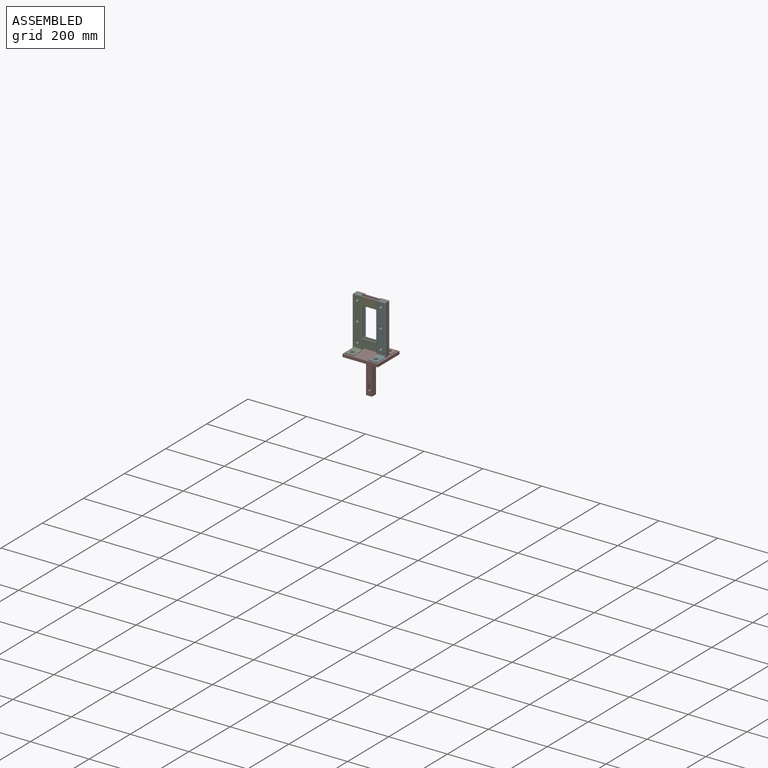
[diagram: assembled view]
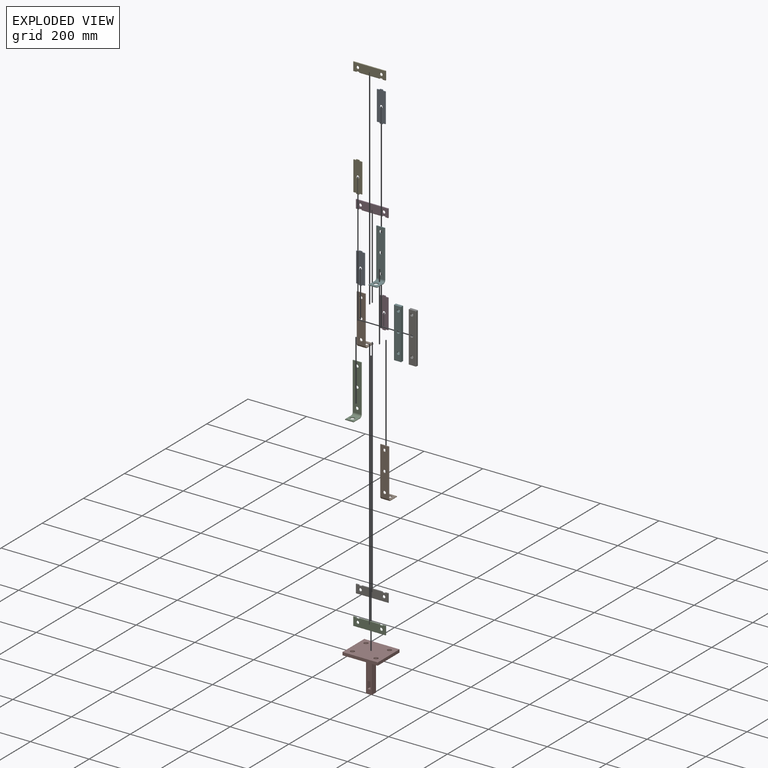
[diagram: exploded view]
GUIDED TOUR — MATED ASSEMBLY (Onshape document da275f5c8d93e357350612ad, AutoMate assembly da275f5c8d93e357350612ad_b882df6806a3eb5cf7b7b091_5af4481226fbedd95fbf42c7_default)

This assembly has 15 components, labeled P0..P14 below (a component is one placed occurrence of a part; the same part can appear more than once), held together by 14 mates. A mate is a constraint between two components; its type names the relative motion it leaves free:
  FASTENED — locks the two components together rigidly (no relative motion).
Axis/direction vectors are unit vectors and 'through' points are millimeter coordinates, both in the assembly's world frame.

MATES
  1. FASTENED "Fastened 4": P10 <-> P7, direction (0.000, 0.000, -1.000) through (-39.80, -33.55, 0.26) mm
  2. FASTENED "Fastened 9": P5 <-> P12, direction (0.000, -1.000, 0.000) through (-39.80, -5.55, 90.26) mm
  3. FASTENED "Fastened 10": P6 <-> P0, direction (0.000, 1.000, 0.000) through (40.20, -5.55, 90.26) mm
  4. FASTENED "Fastened 14": P5 <-> P8, direction (0.000, 1.000, 0.000) through (-39.80, 4.45, 90.26) mm
  5. FASTENED "Fastened 1": P1 <-> P7, direction (0.000, 0.000, -1.000) through (40.20, 32.45, 0.26) mm
  6. FASTENED "Fastened 6": P12 <-> P4, direction (0.000, 0.000, 1.000) through (-39.80, -7.05, 143.26) mm
  7. FASTENED "Fastened 2": P13 <-> P7, direction (0.000, 0.000, -1.000) through (40.20, -33.55, 0.26) mm
  8. FASTENED "Fastened 13": P14 <-> P8, direction (0.000, 0.000, 1.000) through (-39.80, 5.95, 37.26) mm
  9. FASTENED "Fastened 12": P3 <-> P11, direction (0.000, 0.000, 1.000) through (40.20, 5.95, 143.26) mm
  10. FASTENED "Fastened 3": P9 <-> P7, direction (0.000, 0.000, -1.000) through (-39.80, 32.45, 0.26) mm
  11. FASTENED "Fastened 11": P11 <-> P8, direction (0.000, 0.000, -1.000) through (-39.80, 5.95, 143.26) mm
  12. FASTENED "Fastened 8": P0 <-> P13, direction (0.000, -1.000, 0.000) through (40.20, -8.55, 90.26) mm
  13. FASTENED "Fastened 7": P2 <-> P0, direction (0.000, 0.000, 1.000) through (40.20, -7.05, 37.26) mm
  14. FASTENED "Fastened 5": P4 <-> P0, direction (0.000, 0.000, -1.000) through (40.20, -7.05, 143.26) mm

ASSEMBLY ORDER
  1. P9 — the base component [order verified]
  2. P10 [order verified]
  3. P14 [order verified]
  4. P1 [order verified]
  5. P13 [order verified]
  6. P2 [order verified]
  7. P7 [order verified]
  8. P3 [order verified]
  9. P11 [order verified]
  10. P8 [order verified]
  11. P12 [order verified]
  12. P0 [order verified]
  13. P5 [order verified]
  14. P6 [order verified]
  15. P4 [order verified]
Order-tag legend:
  [order verified] — this step's position reverses a verified removal order: the component was checked to insert without passing through the ones already placed.

Of the 15 components, 1 carries the full construction recipe — the FeatureScript program that regenerates the part's solid from scratch; the rest are supplied as boundary geometry only.
Because this assembly has more than 12 components, the tour below covers the 12 most significant ones individually (every recipe-attached component first, then the largest by part volume), in assembly order; the remaining 3 are summarized together in a grouped section at the end.
Each toured component is shown spotlighted twice — in the assembled view, then in the exploded view, where a leader line traces a displaced component back to its assembled socket (saturated green if recipe-attached, orange if geometry-only; every other component desaturated gray) — followed by its recipe or geometry summary and the mates that hold it.
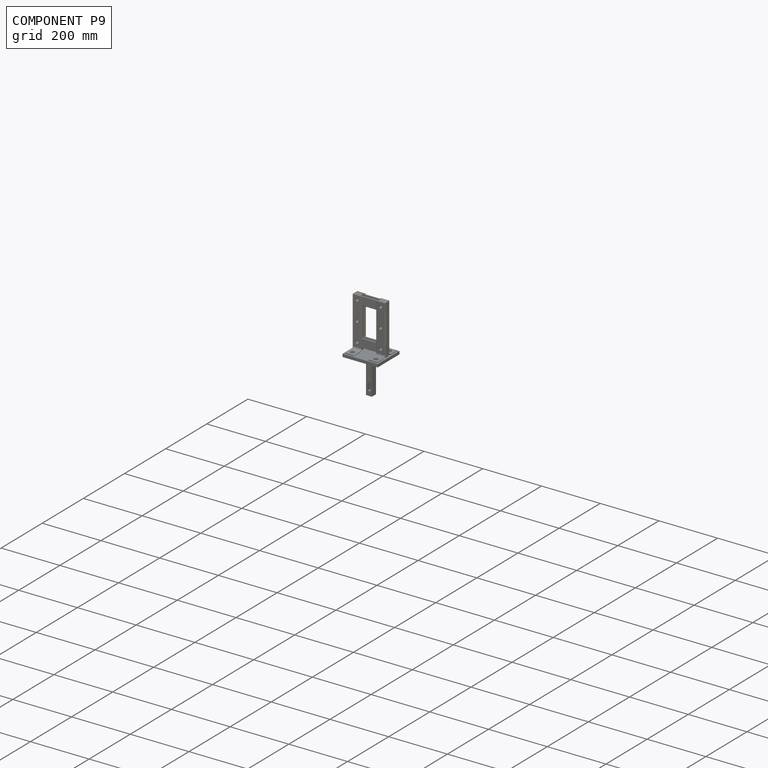
[diagram: component P9 — assembled]
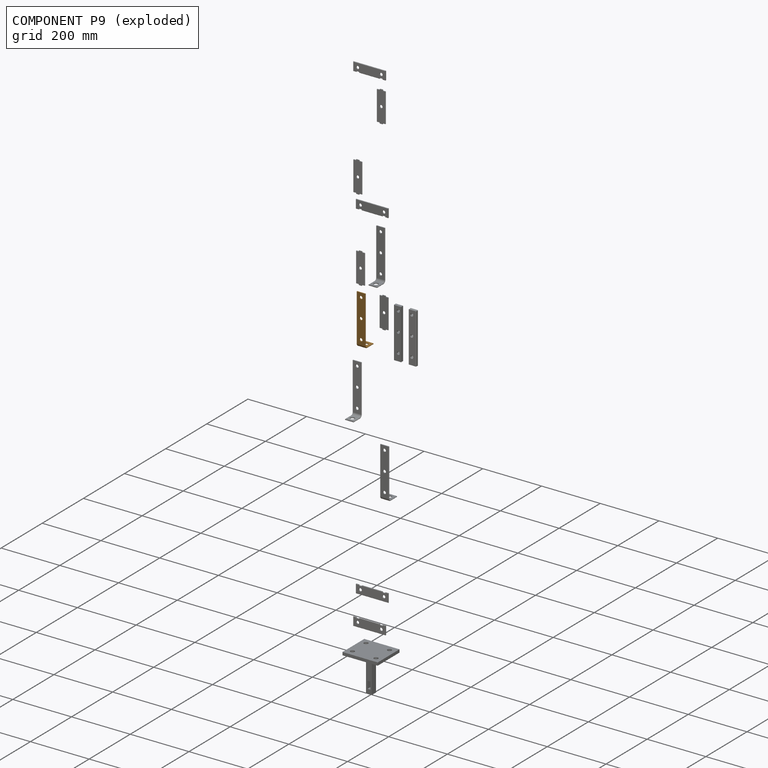
[diagram: component P9 — exploded]
COMPONENT P9 — geometry summary (no construction recipe available for this part):
  bounding box: 170.8 x 40.8 x 30.0 mm
  B-rep topology: 1 solid, 18 faces, 82 edges
  volume: 16740 mm^3 (8% of its bounding box)
  symmetry: mirror-symmetric across its x mid-plane
Held by: FASTENED mate "Fastened 3" to P7.
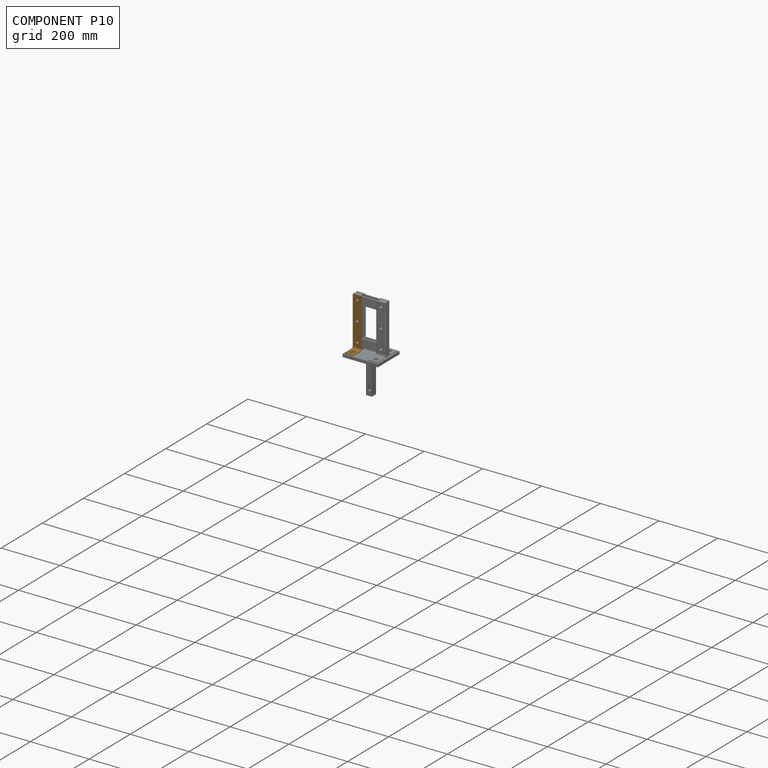
[diagram: component P10 — assembled]
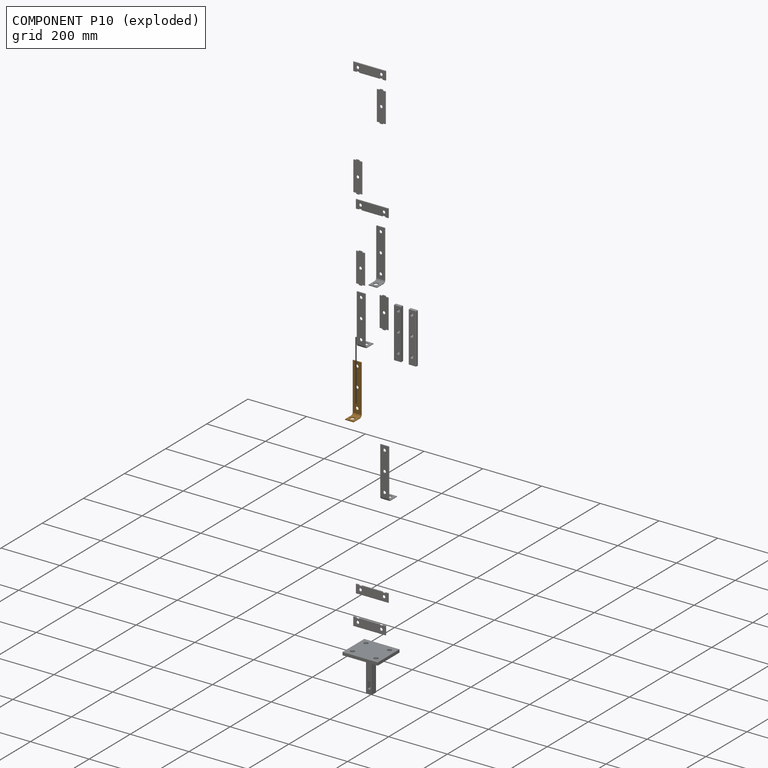
[diagram: component P10 — exploded]
COMPONENT P10 — geometry summary (no construction recipe available for this part):
  bounding box: 170.8 x 40.8 x 30.0 mm
  B-rep topology: 1 solid, 18 faces, 82 edges
  volume: 16740 mm^3 (8% of its bounding box)
  symmetry: mirror-symmetric across its x mid-plane
Held by: FASTENED mate "Fastened 4" to P7.
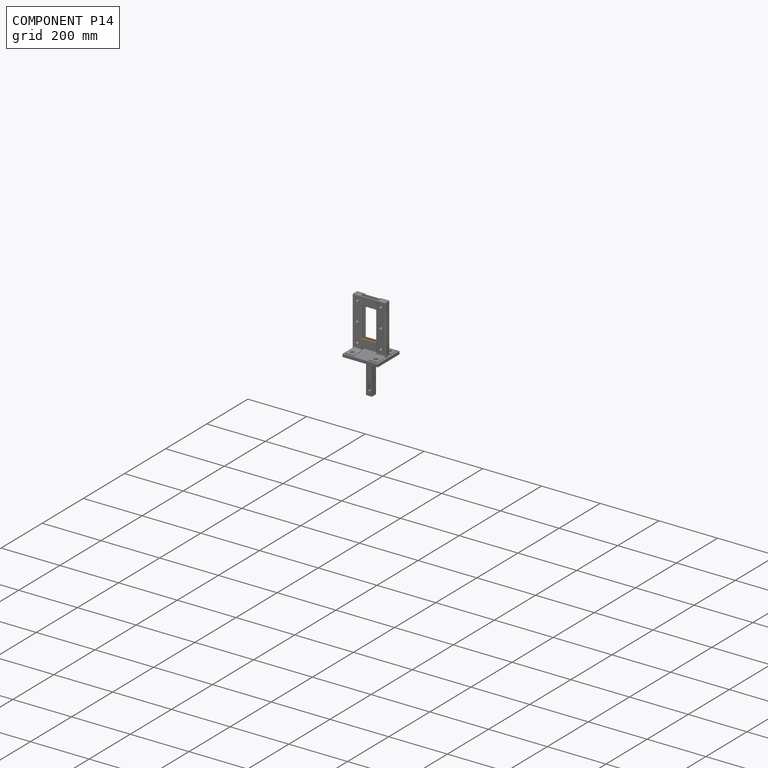
[diagram: component P14 — assembled]
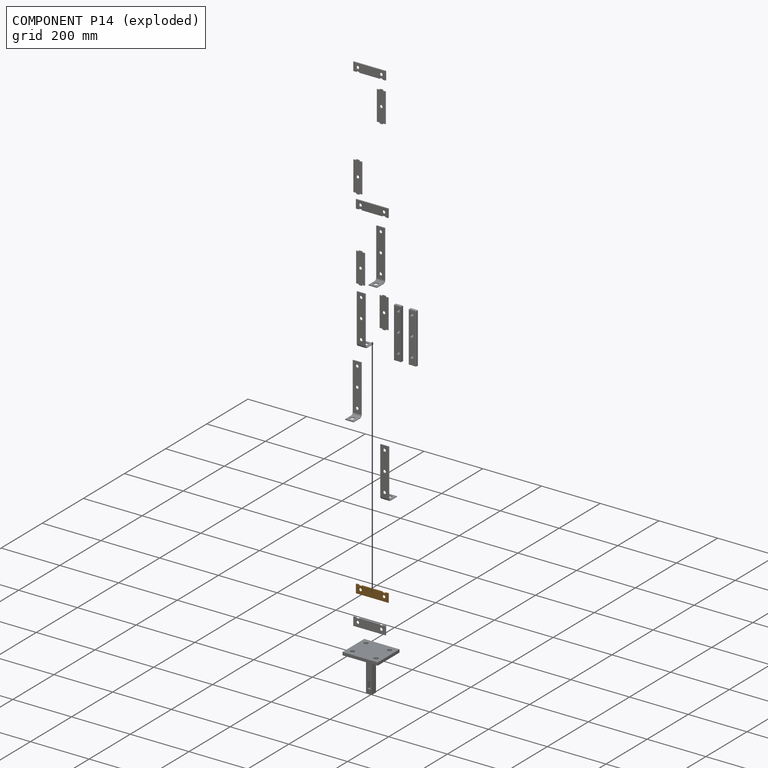
[diagram: component P14 — exploded]
COMPONENT P14 — geometry summary (no construction recipe available for this part):
  bounding box: 110.0 x 30.0 x 3.0 mm
  B-rep topology: 1 solid, 16 faces, 84 edges
  volume: 9056 mm^3 (91% of its bounding box)
  symmetry: 2-fold rotationally symmetric about the x axis; mirror-symmetric across its y mid-plane, z mid-plane
Held by: FASTENED mate "Fastened 13" to P8.
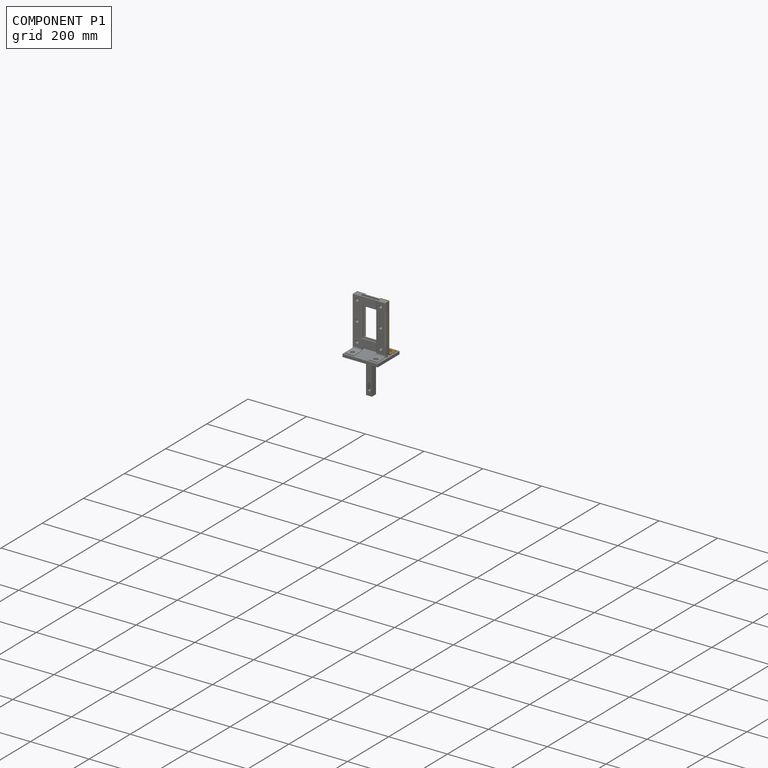
[diagram: component P1 — assembled]
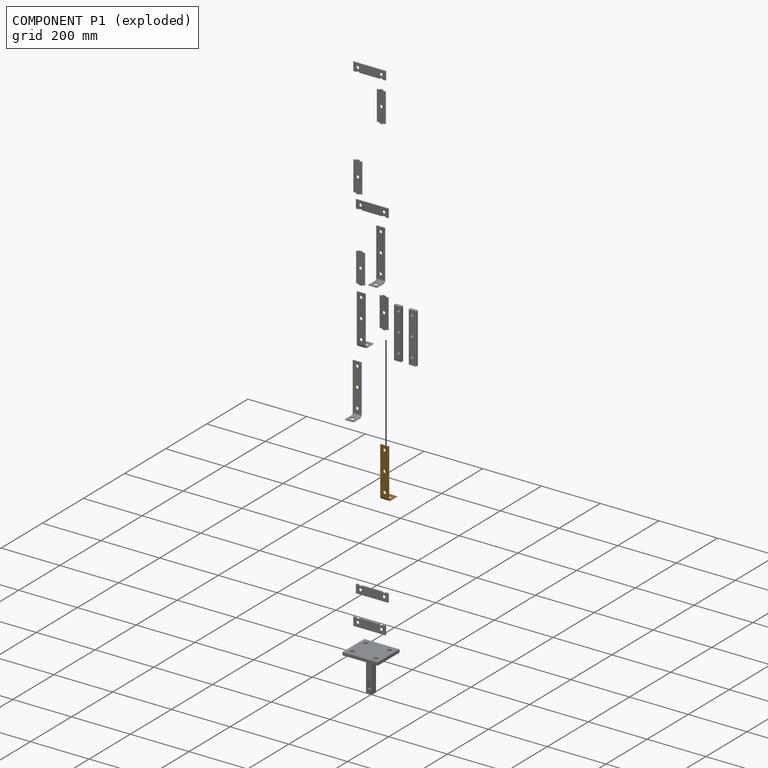
[diagram: component P1 — exploded]
COMPONENT P1 — geometry summary (no construction recipe available for this part):
  bounding box: 170.8 x 40.8 x 30.0 mm
  B-rep topology: 1 solid, 18 faces, 82 edges
  volume: 16740 mm^3 (8% of its bounding box)
  symmetry: mirror-symmetric across its x mid-plane
Held by: FASTENED mate "Fastened 1" to P7.
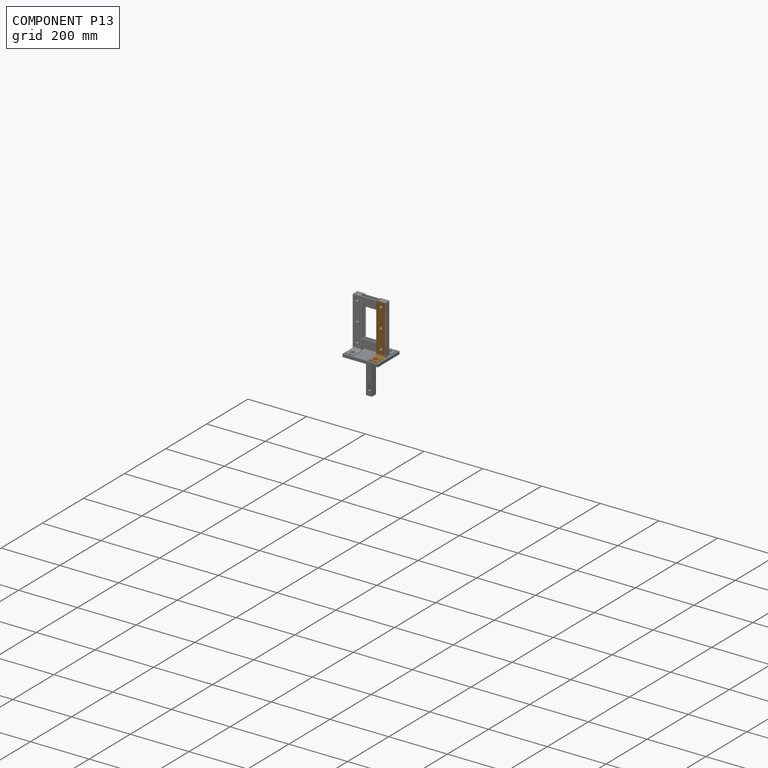
[diagram: component P13 — assembled]
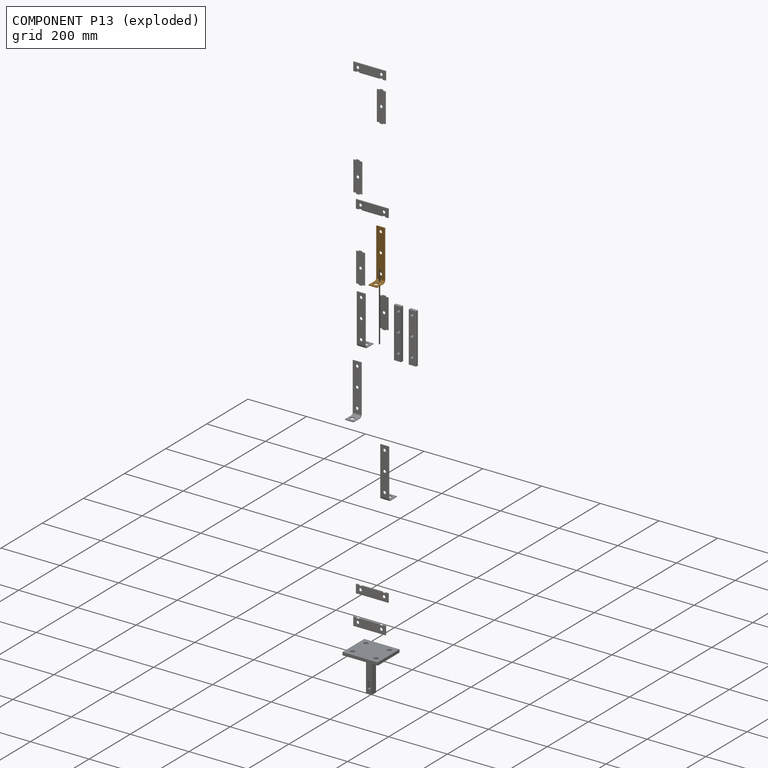
[diagram: component P13 — exploded]
COMPONENT P13 — geometry summary (no construction recipe available for this part):
  bounding box: 170.8 x 40.8 x 30.0 mm
  B-rep topology: 1 solid, 18 faces, 82 edges
  volume: 16740 mm^3 (8% of its bounding box)
  symmetry: mirror-symmetric across its x mid-plane
Held by: FASTENED mate "Fastened 2" to P7; FASTENED mate "Fastened 8" to P0.
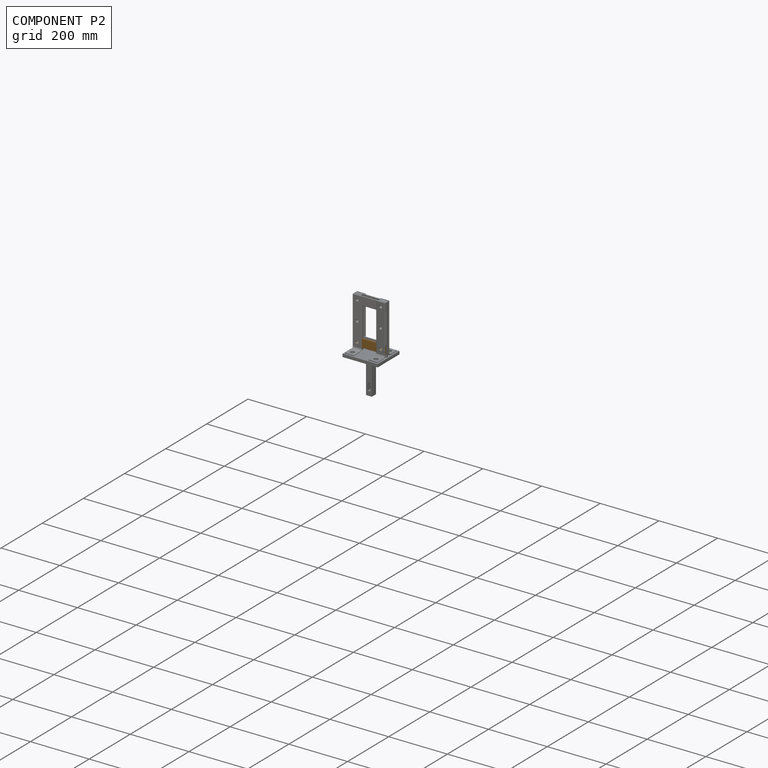
[diagram: component P2 — assembled]
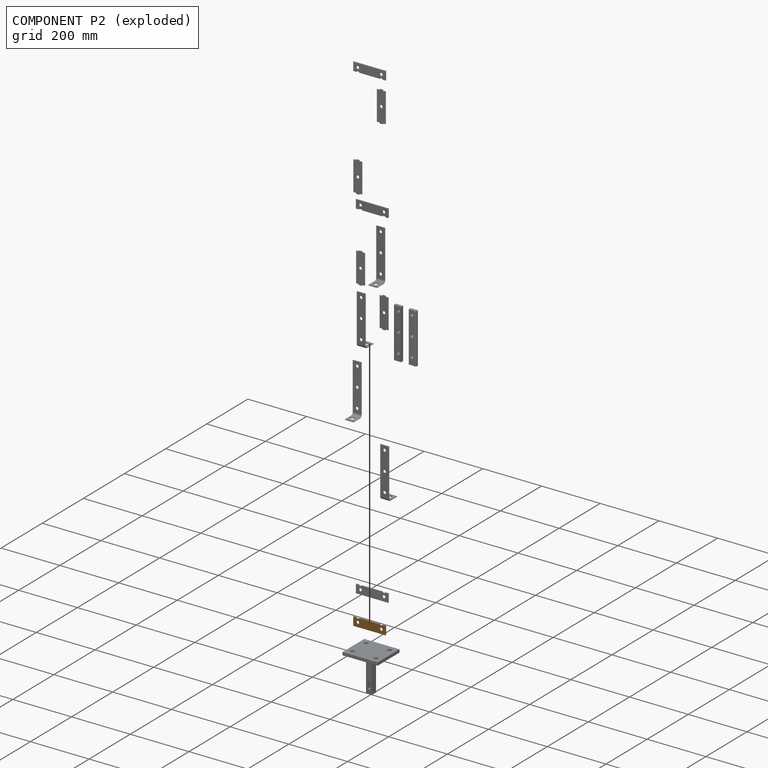
[diagram: component P2 — exploded]
COMPONENT P2 — geometry summary (no construction recipe available for this part):
  bounding box: 110.0 x 30.0 x 3.0 mm
  B-rep topology: 1 solid, 16 faces, 84 edges
  volume: 9056 mm^3 (91% of its bounding box)
  symmetry: 2-fold rotationally symmetric about the x axis; mirror-symmetric across its y mid-plane, z mid-plane
Held by: FASTENED mate "Fastened 7" to P0.
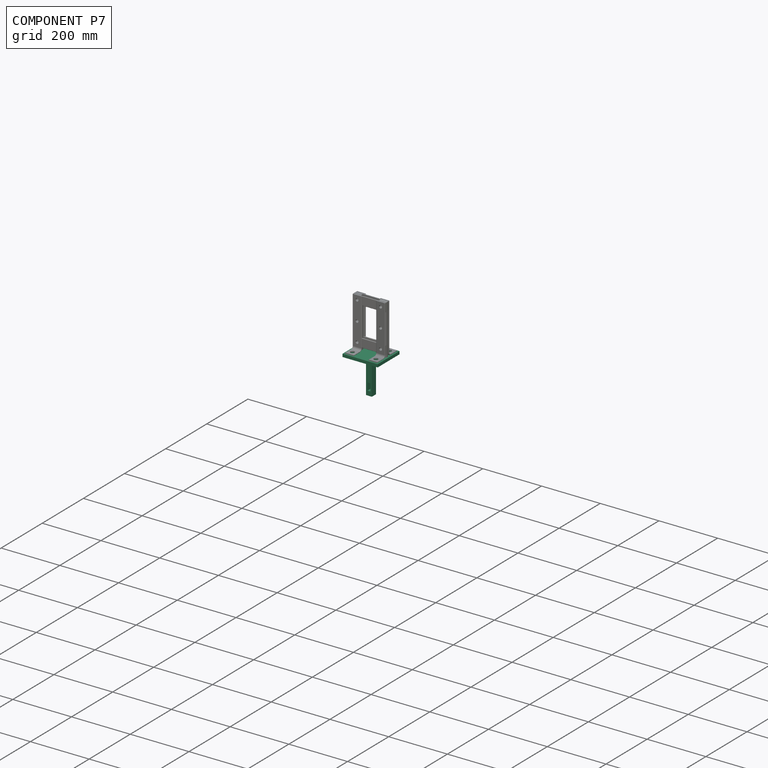
[diagram: component P7 — assembled]
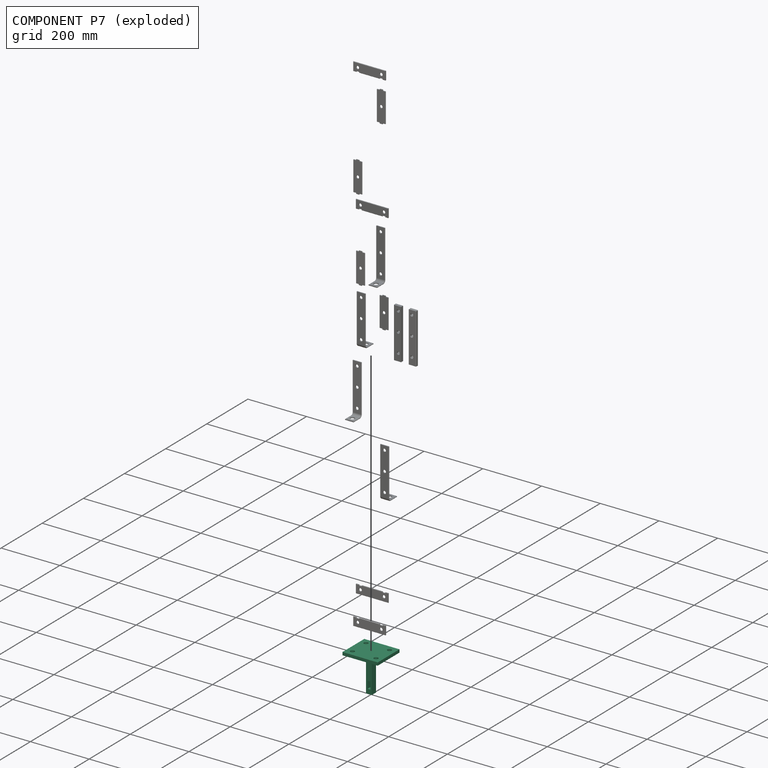
[diagram: component P7 — exploded]
COMPONENT P7 — recipe-attached (CADFS 00516803, mesh-verified: the recipe's output STEP matches this component's geometry to below the mesh-comparison resolution (tessellation chordal tolerance ~0.309 mm)).
Held by: FASTENED mate "Fastened 4" to P10; FASTENED mate "Fastened 1" to P1; FASTENED mate "Fastened 2" to P13; FASTENED mate "Fastened 3" to P9.
Construction recipe (FeatureScript — the CAD program that rebuilds this solid; sketch coordinates are in the units given by the * unit suffixes, e.g. mm):

FeatureScript 1540;
import(path : "onshape/std/geometry.fs", version : "1540.0");
import(path : "onshape/std/common.fs", version : "1540.0");
const mm = millimeter;
const VERTEX = EntityType.VERTEX;
const EDGE = EntityType.EDGE;
const FACE = EntityType.FACE;
const BODY = EntityType.BODY;
function v(x, y){return vector(x, y);}
function OD(order){return orderDisambiguation(order);}
function OSD(set){return originalSetDisambiguation(set);}
function TD(topology){return topologyDisambiguation(topology);}
function TDD(query){return trueDependencyDisambiguation(query);}
function sQuery(a, b, c) {return sketchEntityQuery(a, b, c);}

annotation { "Feature Type Name" : "Feature", "Feature Type Description" : "" }
export const myFeature = defineFeature(function(context is Context, id is Id, definition is map)
    precondition{}
    {
        {
            var Q0;
            Q0=qCreatedBy(makeId("Top.planeOp"),FACE);
            var sketch = newSketch(context, id + "F0", { "sketchPlane" : qUnion([Q0])});
            skLineSegment(sketch, "E0.bottom", {"start": v(-60, 53) * mm, "end": v(60, 53) * mm});
            skLineSegment(sketch, "E0.top", {"start": v(-60, -53) * mm, "end": v(60, -53) * mm});
            skLineSegment(sketch, "E0.left", {"start": v(-60, 53) * mm, "end": v(-60, -53) * mm});
            skLineSegment(sketch, "E0.right", {"start": v(60, 53) * mm, "end": v(60, -53) * mm});
            skPoint(sketch, "E0.middle", {"position": v(0, 0) * mm});
            skLineSegment(sketch, "E1.bottom", {"start": v(-40, 33) * mm, "end": v(40, 33) * mm, "construction": true});
            skLineSegment(sketch, "E1.top", {"start": v(-40, -33) * mm, "end": v(40, -33) * mm, "construction": true});
            skLineSegment(sketch, "E1.left", {"start": v(-40, 33) * mm, "end": v(-40, -33) * mm, "construction": true});
            skLineSegment(sketch, "E1.right", {"start": v(40, 33) * mm, "end": v(40, -33) * mm, "construction": true});
            skCircle(sketch, "E2", {"center": v(-40, 33) * mm, "radius": 7 * mm});
            skCircle(sketch, "E3", {"center": v(-40, -33) * mm, "radius": 7 * mm});
            skCircle(sketch, "E4", {"center": v(40, -33) * mm, "radius": 7 * mm});
            skCircle(sketch, "E5", {"center": v(40, 33) * mm, "radius": 7 * mm});
            skLineSegment(sketch, "E6.bottom", {"start": v(-10, 10) * mm, "end": v(10, 10) * mm});
            skLineSegment(sketch, "E6.top", {"start": v(-10, -10) * mm, "end": v(10, -10) * mm});
            skLineSegment(sketch, "E6.left", {"start": v(-10, 10) * mm, "end": v(-10, -10) * mm});
            skLineSegment(sketch, "E6.right", {"start": v(10, 10) * mm, "end": v(10, -10) * mm});
            skSolve(sketch);
        }
        {
            var Q0;
            Q0=qCreatedBy(makeId("Front.planeOp"),FACE);
            var sketch = newSketch(context, id + "F1", { "sketchPlane" : qUnion([Q0])});
            skLineSegment(sketch, "E7.bottom", {"start": v(-5, -80) * mm, "end": v(5, -80) * mm});
            skLineSegment(sketch, "E7.top", {"start": v(-5, -105) * mm, "end": v(5, -105) * mm});
            skLineSegment(sketch, "E7.left", {"start": v(-5, -80) * mm, "end": v(-5, -105) * mm});
            skLineSegment(sketch, "E7.right", {"start": v(5, -80) * mm, "end": v(5, -105) * mm});
            skPoint(sketch, "E7.middle", {"position": v(0, -92.5) * mm});
            skSolve(sketch);
        }
        {
            var Q0;
            Q0=makeQuery(id+"F0.imprint","IMPRINT",FACE,{"disambiguationData":[TD([[makeQuery(id+"F0.imprint","IMPRINT",EDGE,{"derivedFrom":sQuery(id+"F0.wireOp",EDGE,"E6.bottom")}),-1.0]])]});
            extrude(context, id + "F2", {"entities" : qUnion([Q0]), "oppositeDirection" : true, "depth" : 120 * mm, "offsetDistance" : 25 * mm});
        }
        {
            var Q0;
            Q0=makeQuery(id+"F0.imprint","IMPRINT",FACE,{"disambiguationData":[TD([[makeQuery(id+"F0.imprint","IMPRINT",EDGE,{"derivedFrom":sQuery(id+"F0.wireOp",EDGE,"E0.bottom")}),-1.0]])]});
            var Q1;
            Q1=makeQuery(id+"F0.imprint","IMPRINT",FACE,{"disambiguationData":[TD([[makeQuery(id+"F0.imprint","IMPRINT",EDGE,{"derivedFrom":sQuery(id+"F0.wireOp",EDGE,"E6.bottom")}),-1.0]])]});
            extrude(context, id + "F3", {"entities" : qUnion([Q0, Q1]), "operationType" : NewBodyOperationType.ADD, "depth" : 10 * mm, "offsetDistance" : 25 * mm});
        }
        {
            var Q0;
            Q0 = qSketchRegion(id + "F1", true);
            extrude(context, id + "F4", {"entities" : qUnion([Q0]), "operationType" : NewBodyOperationType.REMOVE, "depth" : 25 * mm, "offsetDistance" : 25 * mm, "symmetric" : true});
        }
    });
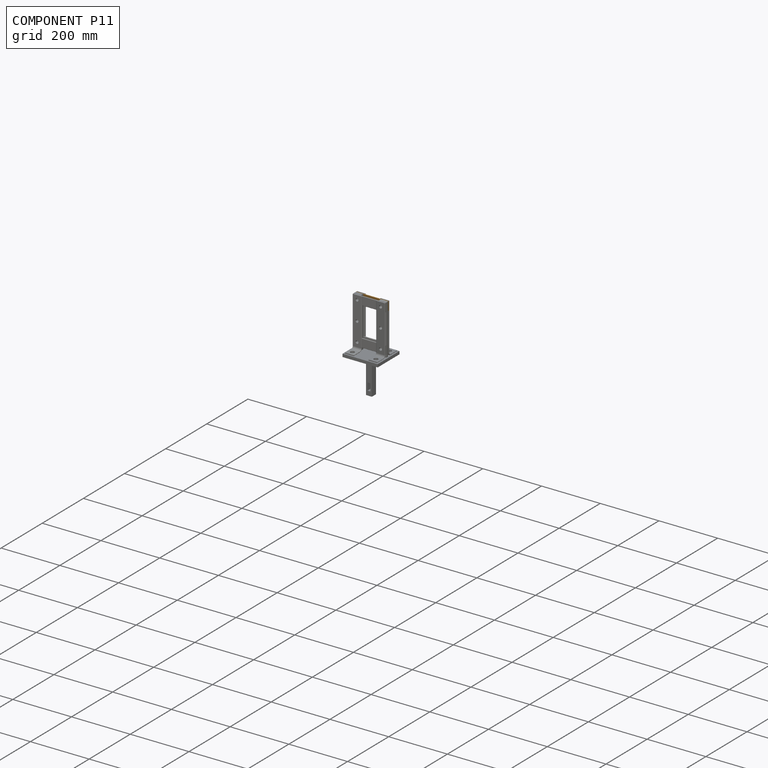
[diagram: component P11 — assembled]
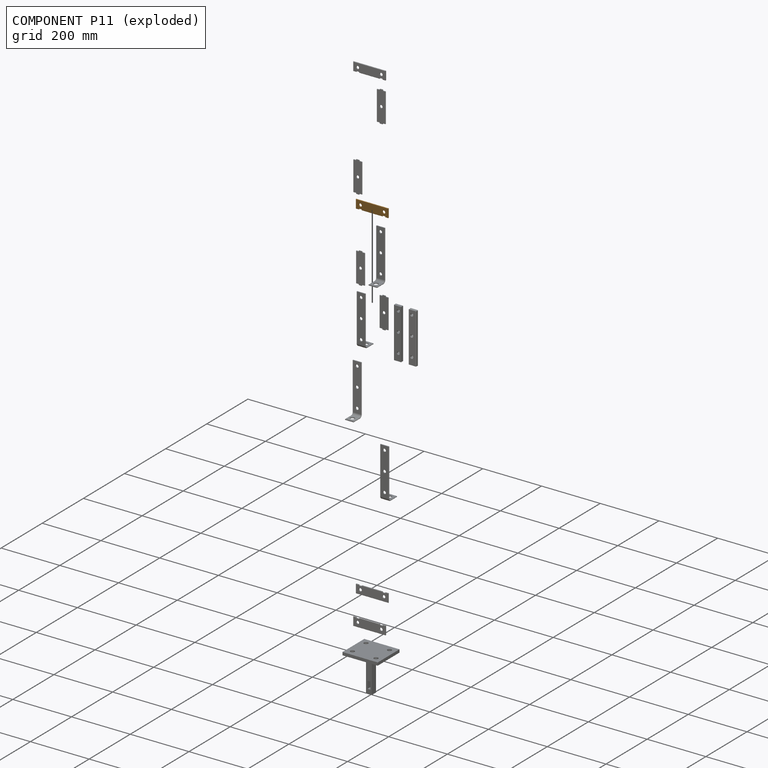
[diagram: component P11 — exploded]
COMPONENT P11 — geometry summary (no construction recipe available for this part):
  bounding box: 110.0 x 30.0 x 3.0 mm
  B-rep topology: 1 solid, 16 faces, 84 edges
  volume: 9056 mm^3 (91% of its bounding box)
  symmetry: 2-fold rotationally symmetric about the x axis; mirror-symmetric across its y mid-plane, z mid-plane
Held by: FASTENED mate "Fastened 12" to P3; FASTENED mate "Fastened 11" to P8.
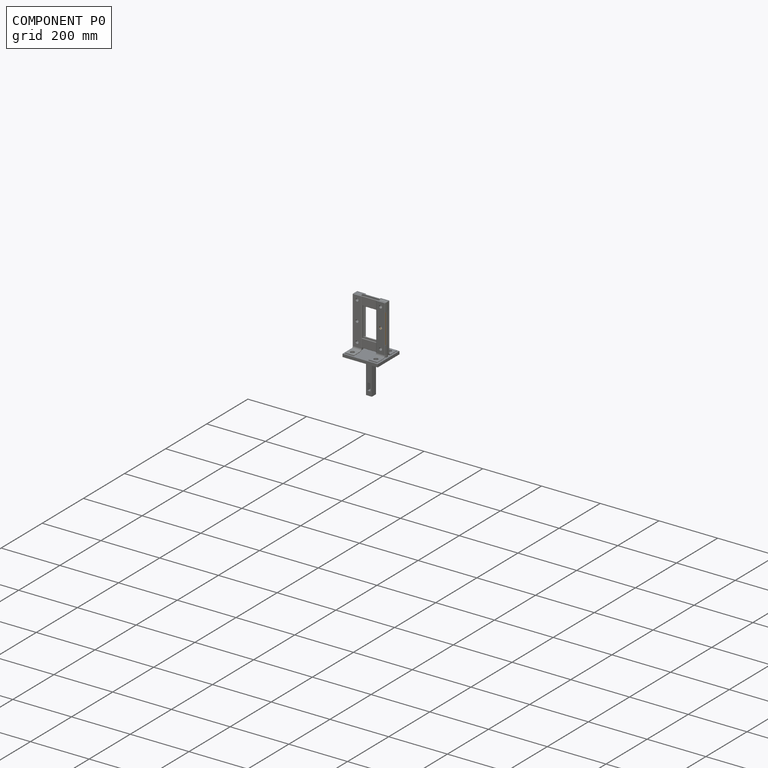
[diagram: component P0 — assembled]
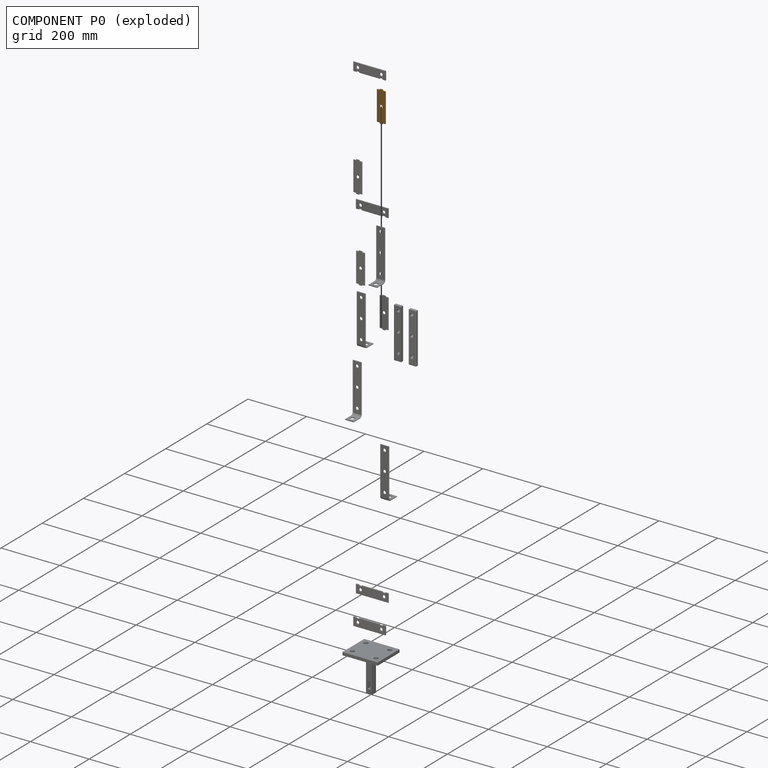
[diagram: component P0 — exploded]
COMPONENT P0 — geometry summary (no construction recipe available for this part):
  bounding box: 106.0 x 30.0 x 3.0 mm
  B-rep topology: 1 solid, 15 faces, 78 edges
  volume: 8751 mm^3 (92% of its bounding box)
  symmetry: 2-fold rotationally symmetric about the x axis; 2-fold rotationally symmetric about the y axis; 2-fold rotationally symmetric about the z axis; mirror-symmetric across its x mid-plane, y mid-plane, z mid-plane
Held by: FASTENED mate "Fastened 10" to P6; FASTENED mate "Fastened 8" to P13; FASTENED mate "Fastened 7" to P2; FASTENED mate "Fastened 5" to P4.
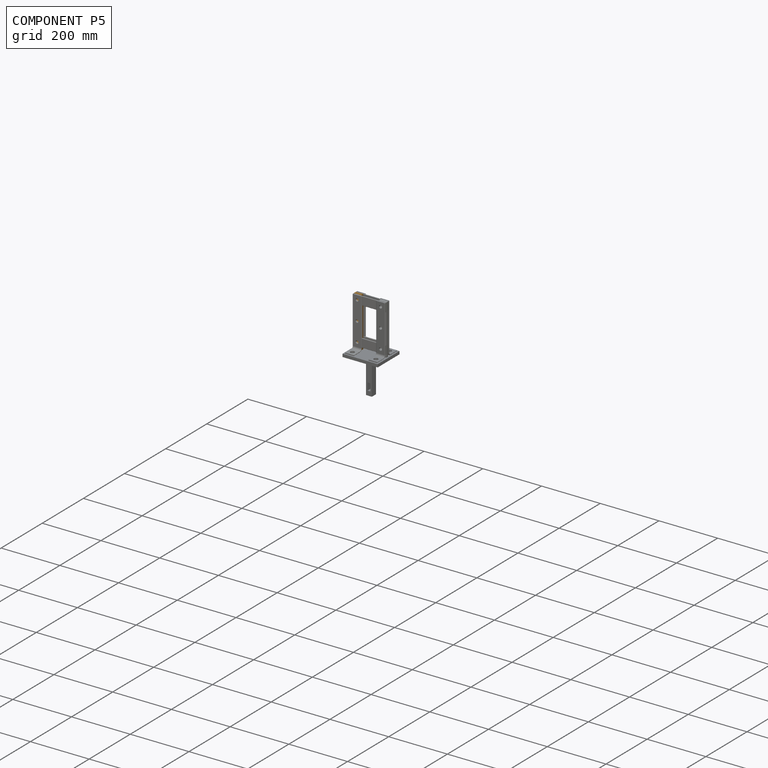
[diagram: component P5 — assembled]
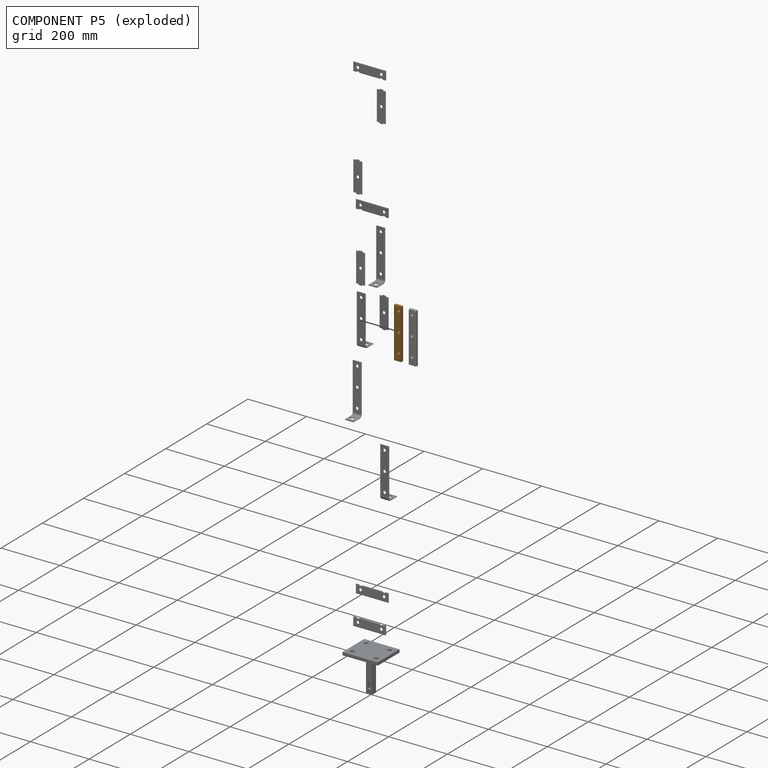
[diagram: component P5 — exploded]
COMPONENT P5 — geometry summary (no construction recipe available for this part):
  bounding box: 170.0 x 25.0 x 10.0 mm
  B-rep topology: 1 solid, 11 faces, 54 edges
  volume: 39980 mm^3 (94% of its bounding box)
  symmetry: mirror-symmetric across its y mid-plane
Held by: FASTENED mate "Fastened 9" to P12; FASTENED mate "Fastened 14" to P8.
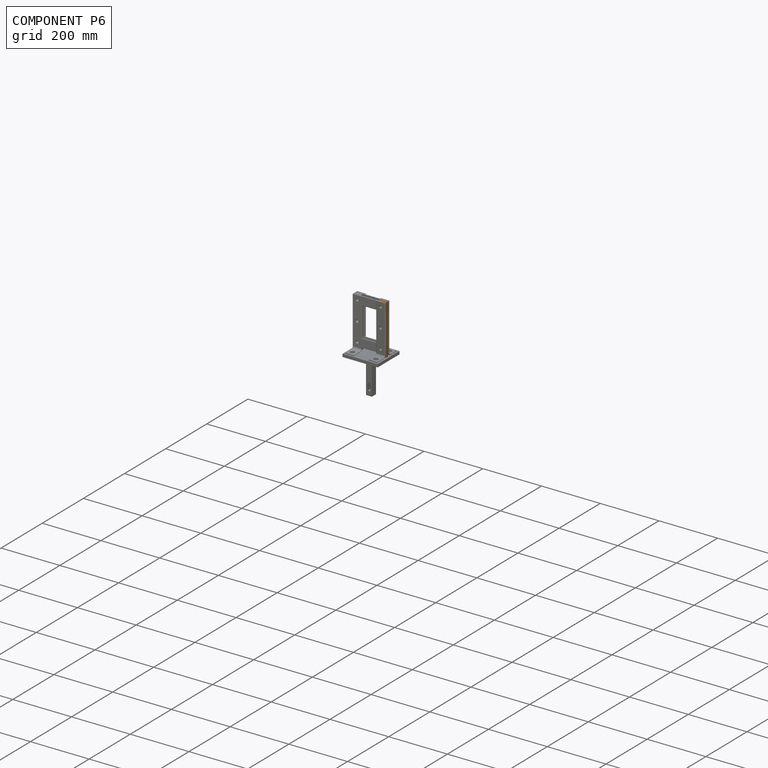
[diagram: component P6 — assembled]
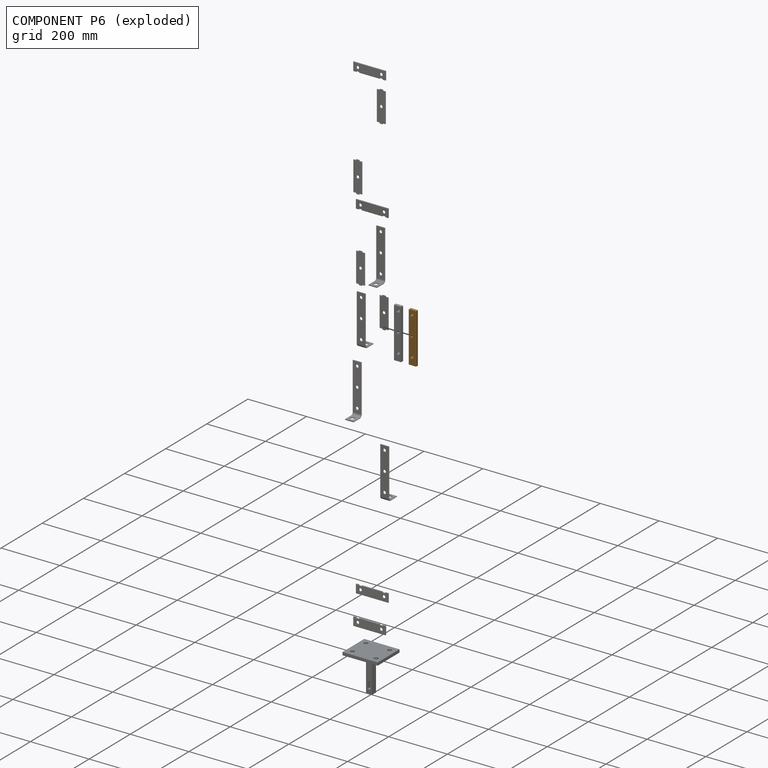
[diagram: component P6 — exploded]
COMPONENT P6 — geometry summary (no construction recipe available for this part):
  bounding box: 170.0 x 25.0 x 10.0 mm
  B-rep topology: 1 solid, 11 faces, 54 edges
  volume: 39980 mm^3 (94% of its bounding box)
  symmetry: mirror-symmetric across its y mid-plane
Held by: FASTENED mate "Fastened 10" to P0.
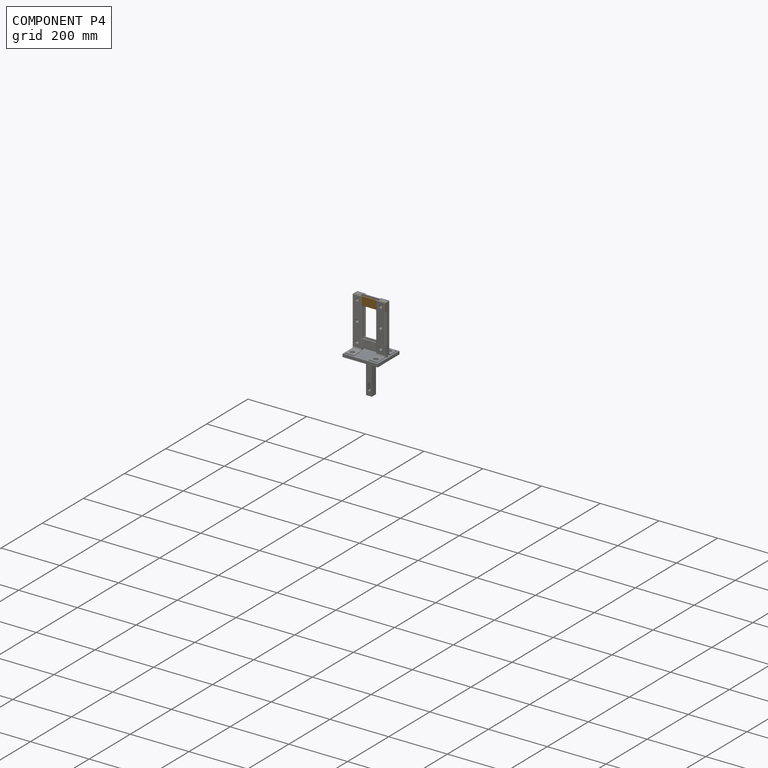
[diagram: component P4 — assembled]
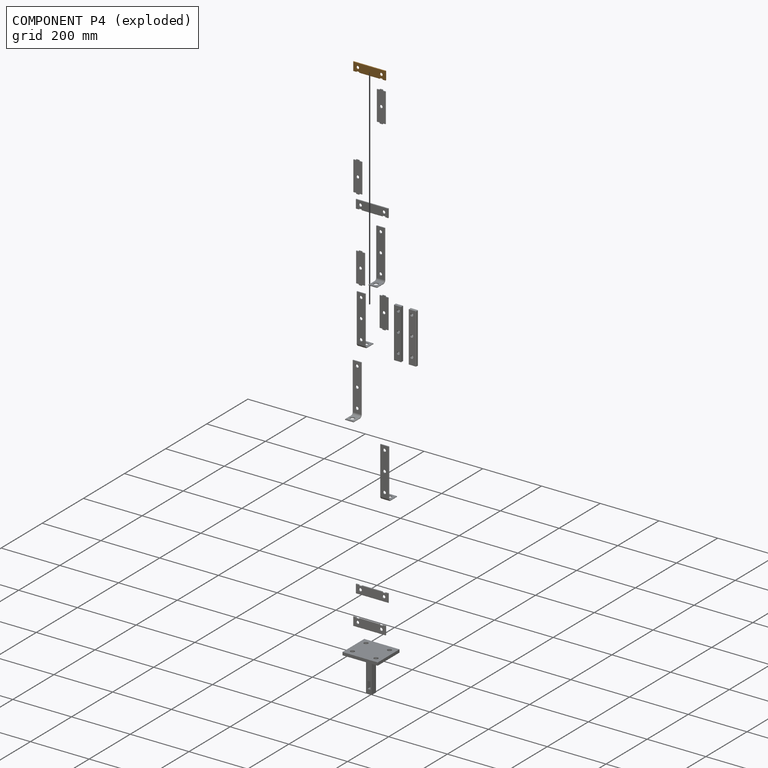
[diagram: component P4 — exploded]
COMPONENT P4 — geometry summary (no construction recipe available for this part):
  bounding box: 110.0 x 30.0 x 3.0 mm
  B-rep topology: 1 solid, 16 faces, 84 edges
  volume: 9056 mm^3 (91% of its bounding box)
  symmetry: 2-fold rotationally symmetric about the x axis; mirror-symmetric across its y mid-plane, z mid-plane
Held by: FASTENED mate "Fastened 6" to P12; FASTENED mate "Fastened 5" to P0.
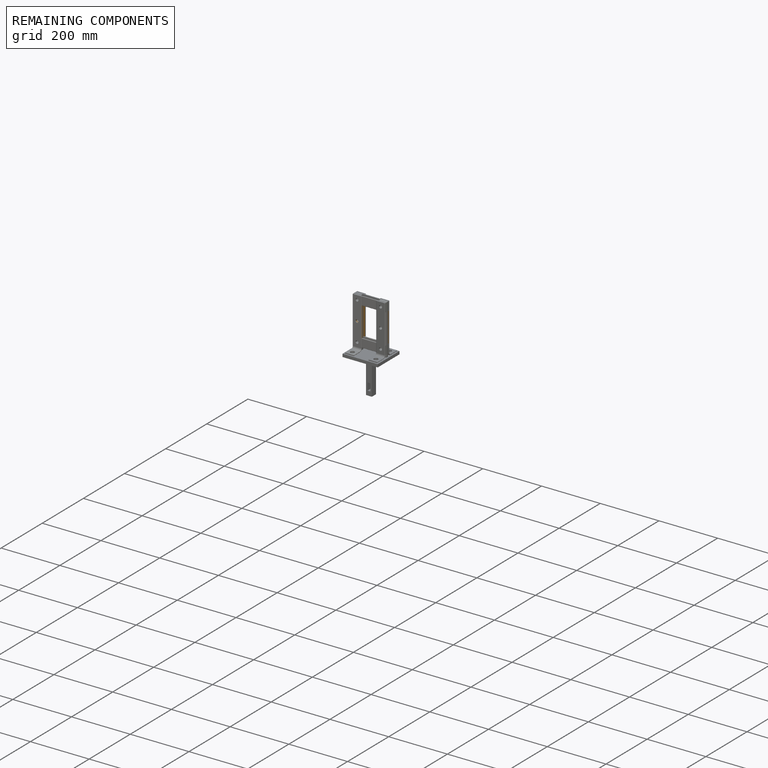
[diagram: remaining components — assembled]
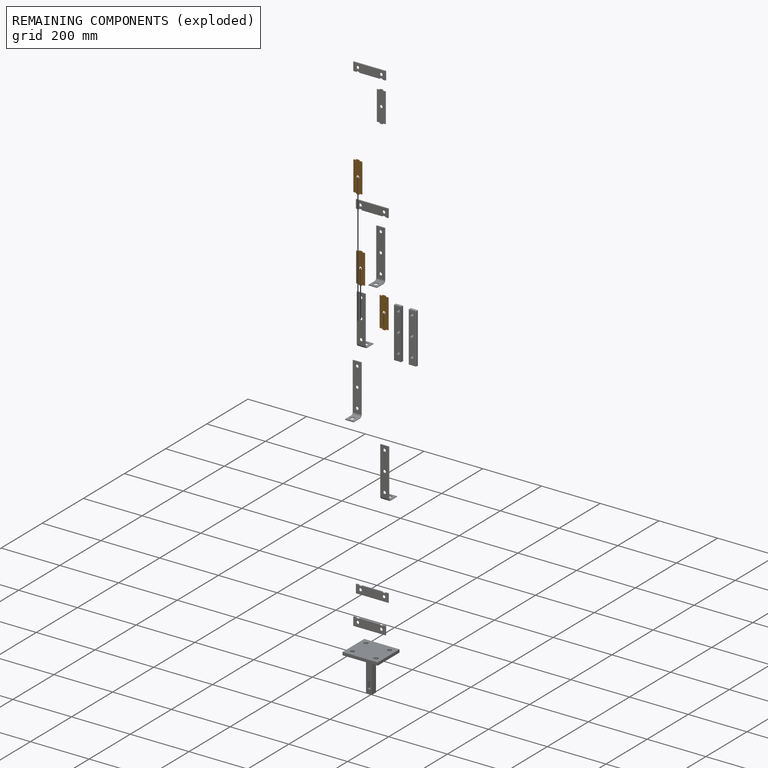
[diagram: remaining components — exploded]
REMAINING COMPONENTS (grouped) — the 3 components below fall outside the per-component tour by the significance rule stated above; both spotlight views highlight the whole group.
  P3: bounding box 106.0 x 30.0 x 3.0 mm, volume 8751 mm^3. Held by: FASTENED mate "Fastened 12" to P11.
  P8: bounding box 106.0 x 30.0 x 3.0 mm, volume 8751 mm^3. Held by: FASTENED mate "Fastened 14" to P5; FASTENED mate "Fastened 13" to P14; FASTENED mate "Fastened 11" to P11.
  P12: bounding box 106.0 x 30.0 x 3.0 mm, volume 8751 mm^3. Held by: FASTENED mate "Fastened 9" to P5; FASTENED mate "Fastened 6" to P4.
PROVENANCE & LICENSES
Assembly (occurrences, transforms, mates, per-part STEP geometry): AutoMate dataset, Zenodo record 7776208, CC0.
Construction recipes: CADFS (HuggingFace VladPyatov/CADFS, CC-BY-4.0, layered over the ABC dataset), FeatureScript reconstruction programs keyed by ABC model id.
Join: ABC meta listings map ABC model id -> Onshape documentId; within a shared document, parts are matched by geometric signature (bounding-box dims + volume at 0.1% relative tolerance, exact B-rep face/solid counts).
Verification: 1 of this assembly's 15 components carries a recipe attachment, and every attachment is mesh-verified: the CADFS STEP and the AutoMate member STEP were compared as meshes in their shared local frame (symmetric sampled-point-to-mesh distance); worst across the 1 attachment: below the mesh-comparison resolution (tessellation chordal tolerance ~0.309 mm) on a 206 mm part.
Renders: orthographic iso camera (az 35 / el 25); the floor grid conveys scale (grid pitch printed in each image; no ruler). In the exploded view each component is displaced by its stored offset vector: the offsets alone carry the explosion direction (mate normal/axis signs are not orientation cues and do not encode it), and separation distances are assigned per mate-chain, not proportionally to assembly-order depth.
